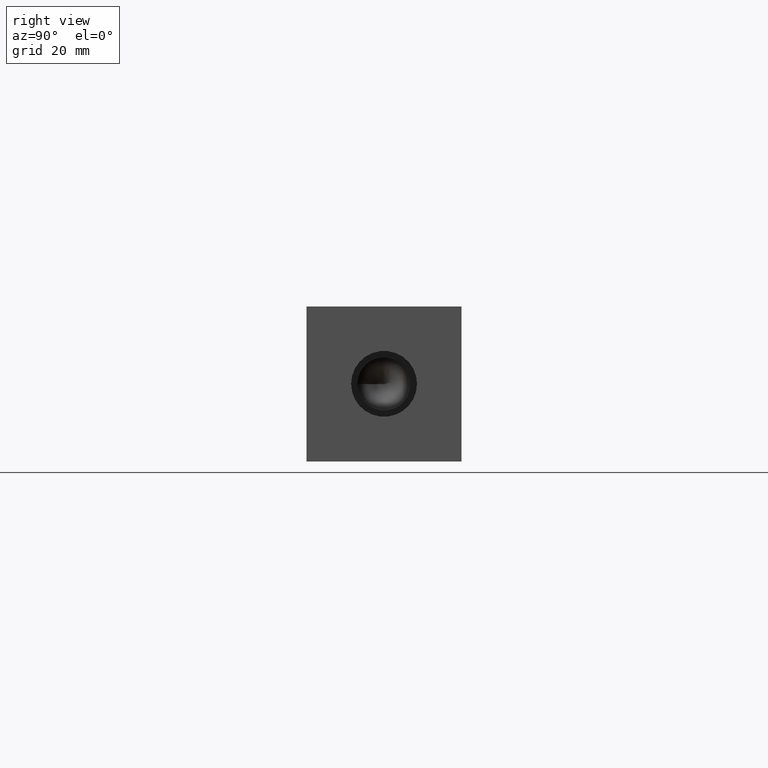
[diagram: clean part render]
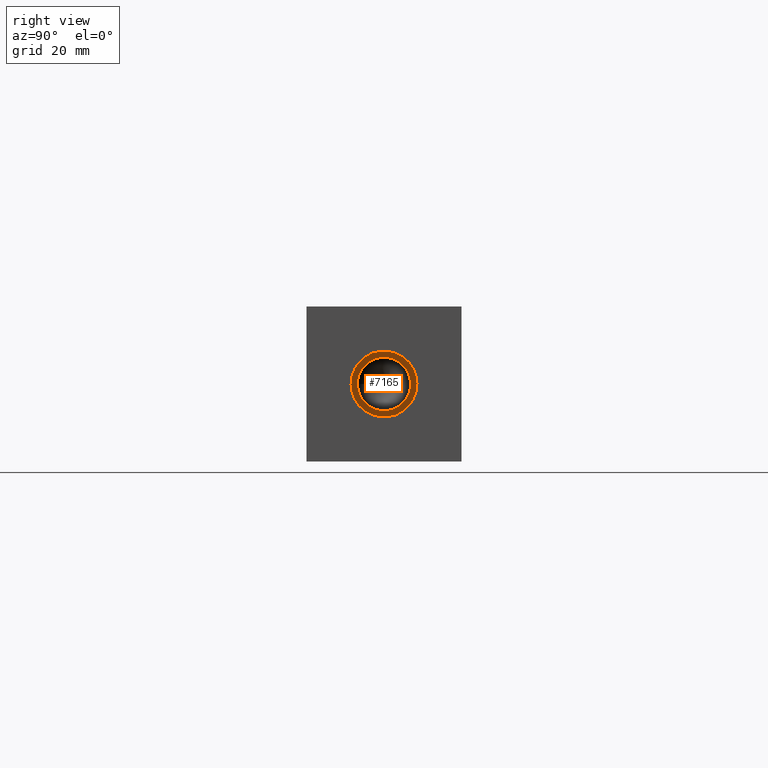
[diagram: same view with one face highlighted and labeled with its STEP entity id]
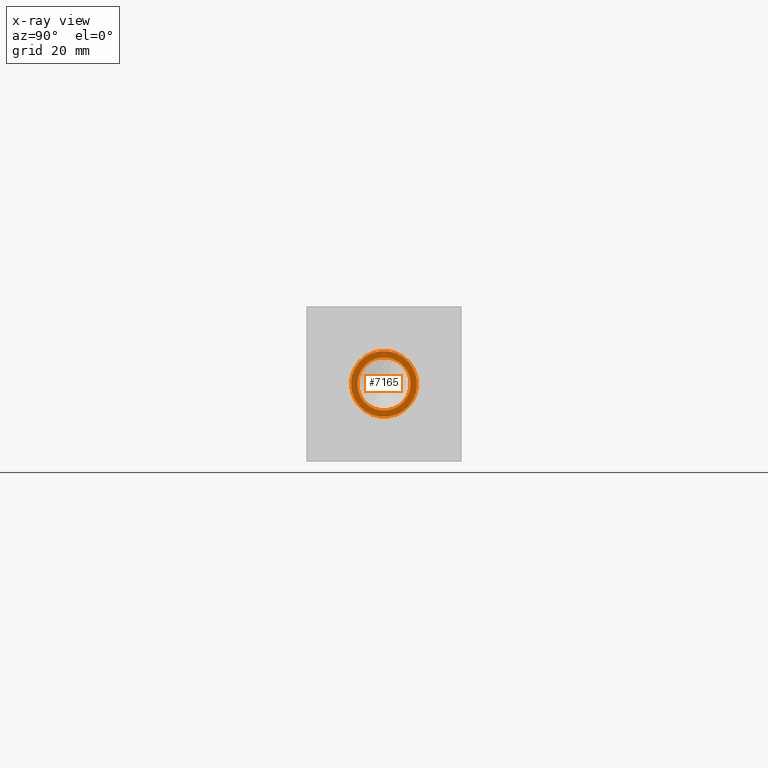
[diagram: x-ray of the same camera — body ghosted, the highlighted face saturated]
A machine part, right view. The second image highlights one B-rep face of the part: STEP entity #7165.
The next image is the same camera in x-ray: the body ghosted, the highlighted face saturated — about 0% of this face is hidden behind the body in this view.
In plain terms, the highlighted planar face has unit normal (1, 0, 0).
Its self-contained STEP definition (entity closure, byte-faithful):
#130=CIRCLE('',#7531,10.795);
#131=CIRCLE('',#7532,10.795);
#132=CIRCLE('',#7533,8.7376);
#186=FACE_BOUND('',#1195,.T.);
#427=PLANE('',#7530);
#786=FACE_OUTER_BOUND('',#1194,.T.);
#1194=EDGE_LOOP('',(#6348,#6349));
#1195=EDGE_LOOP('',(#6350));
#3466=VERTEX_POINT('',#12129);
#3467=VERTEX_POINT('',#12130);
#3468=VERTEX_POINT('',#12133);
#4438=EDGE_CURVE('',#3466,#3467,#130,.T.);
#4439=EDGE_CURVE('',#3467,#3466,#131,.T.);
#4440=EDGE_CURVE('',#3468,#3468,#132,.T.);
#6348=ORIENTED_EDGE('',*,*,#4438,.T.);
#6349=ORIENTED_EDGE('',*,*,#4439,.T.);
#6350=ORIENTED_EDGE('',*,*,#4440,.F.);
#7165=ADVANCED_FACE('',(#786,#186),#427,.T.);
#7530=AXIS2_PLACEMENT_3D('',#12128,#8928,#8929);
#7531=AXIS2_PLACEMENT_3D('',#12131,#8930,#8931);
#7532=AXIS2_PLACEMENT_3D('',#12132,#8932,#8933);
#7533=AXIS2_PLACEMENT_3D('',#12134,#8934,#8935);
#8928=DIRECTION('center_axis',(1.,0.,0.));
#8929=DIRECTION('ref_axis',(0.,1.,0.));
#8930=DIRECTION('center_axis',(1.,0.,0.));
#8931=DIRECTION('ref_axis',(0.,1.,0.));
#8932=DIRECTION('center_axis',(1.,0.,0.));
#8933=DIRECTION('ref_axis',(0.,1.,0.));
#8934=DIRECTION('center_axis',(1.,0.,0.));
#8935=DIRECTION('ref_axis',(0.,1.,0.));
#12128=CARTESIAN_POINT('Origin',(213.233,25.4,25.4));
#12129=CARTESIAN_POINT('',(213.233,36.195,25.4));
#12130=CARTESIAN_POINT('',(213.233,14.605,25.4));
#12131=CARTESIAN_POINT('Origin',(213.233,25.4,25.4));
#12132=CARTESIAN_POINT('Origin',(213.233,25.4,25.4));
#12133=CARTESIAN_POINT('',(213.233,16.6624,25.4));
#12134=CARTESIAN_POINT('Origin',(213.233,25.4,25.4));